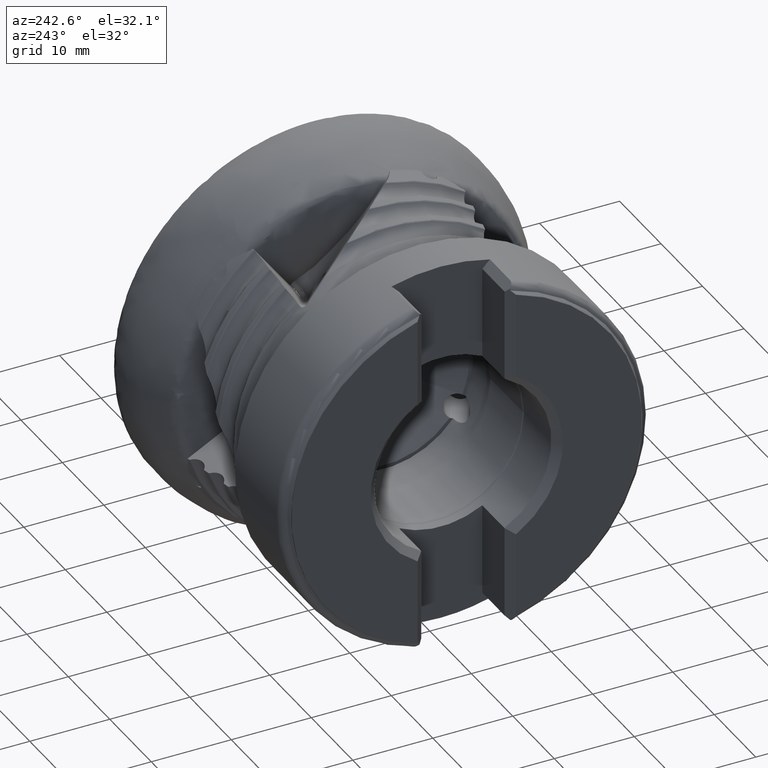
[diagram: clean part render]
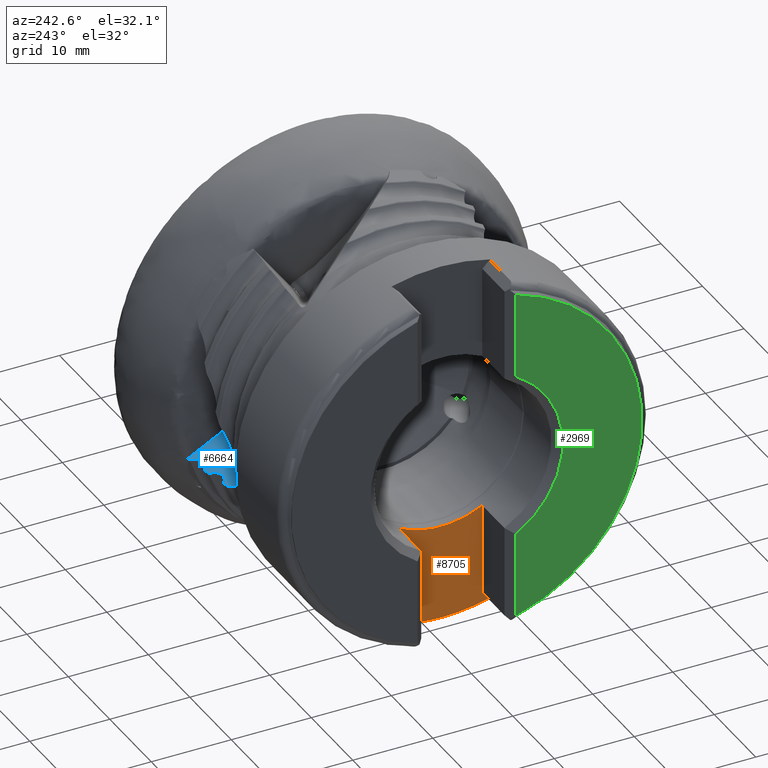
[diagram: same view with three faces highlighted in distinct colors, each labeled with its STEP entity id]
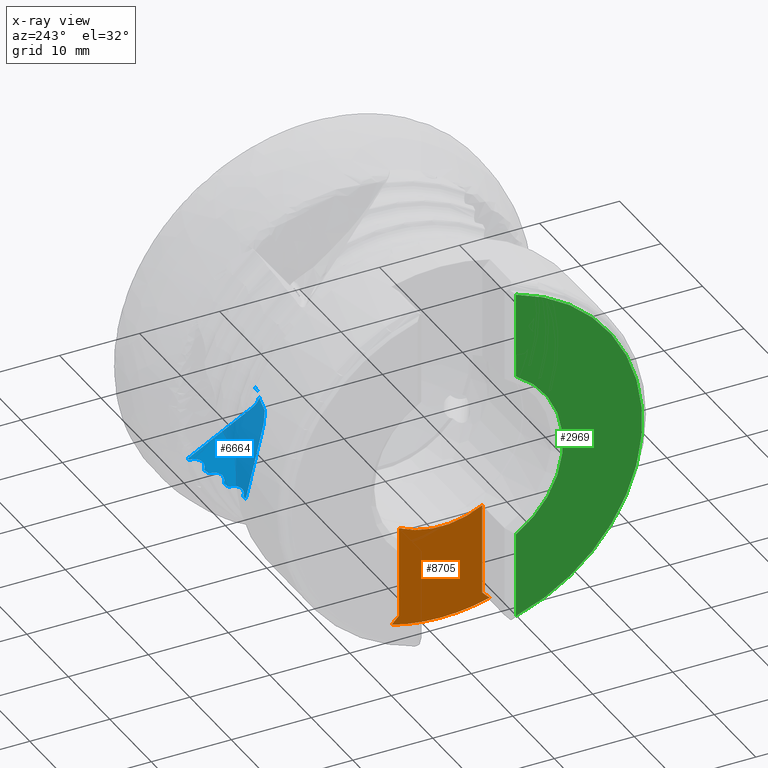
[diagram: x-ray of the same camera — body ghosted, the three highlighted faces saturated]
A machine part, auxiliary view with three faces highlighted in distinct colors.
The next image is the same camera in x-ray (body ghosted, the three faces saturated) — at least one of them is partly hidden behind the body in this view.
Their STEP definitions:

[orange] entity #8705 — the highlighted planar face has unit normal (1, 0, 0).
#744 = DIRECTION ( 'NONE',  ( -0.0000000000000000000, -0.0000000000000000000, 1.000000000000000000 ) ) ;
#1164 = EDGE_CURVE ( 'NONE', #12843, #9608, #3377, .T. ) ;
#1544 = CARTESIAN_POINT ( 'NONE',  ( -32.60525917703945700, 12.09671194195633600, -28.08718699729195800 ) ) ;
#1784 = LINE ( 'NONE', #1544, #9828 ) ;
#1906 = DIRECTION ( 'NONE',  ( -0.0000000000000000000, -0.0000000000000000000, 1.000000000000000000 ) ) ;
#2002 = VECTOR ( 'NONE', #1906, 1000.000000000000000 ) ;
#2168 = VERTEX_POINT ( 'NONE', #10011 ) ;
#2268 = EDGE_CURVE ( 'NONE', #2168, #9608, #11075, .T. ) ;
#2504 = VERTEX_POINT ( 'NONE', #11461 ) ;
#2600 = DIRECTION ( 'NONE',  ( -0.0000000000000000000, 0.7079307432236500200, -0.7062818579000953400 ) ) ;
#2642 = EDGE_CURVE ( 'NONE', #2504, #2168, #9745, .T. ) ;
#2825 = DIRECTION ( 'NONE',  ( -1.000000000000000000, -0.0000000000000000000, -0.0000000000000000000 ) ) ;
#2956 = AXIS2_PLACEMENT_3D ( 'NONE', #4733, #3763, #11094 ) ;
#3377 = CIRCLE ( 'NONE', #4231, 11.07499999999999800 ) ;
#3687 = DIRECTION ( 'NONE',  ( -1.000000000000000000, -0.0000000000000000000, -0.0000000000000000000 ) ) ;
#3763 = DIRECTION ( 'NONE',  ( 1.000000000000000000, 0.0000000000000000000, 0.0000000000000000000 ) ) ;
#4231 = AXIS2_PLACEMENT_3D ( 'NONE', #9140, #2825, #10184 ) ;
#4249 = EDGE_CURVE ( 'NONE', #8901, #12843, #6944, .T. ) ;
#4733 = CARTESIAN_POINT ( 'NONE',  ( -32.60525917703945700, 5.199999999999994000, -35.00000000000000000 ) ) ;
#5498 = VECTOR ( 'NONE', #744, 1000.000000000000000 ) ;
#5975 = CARTESIAN_POINT ( 'NONE',  ( -32.60525917703945700, 6.156428778033626900, -22.16073971466203200 ) ) ;
#5985 = CARTESIAN_POINT ( 'NONE',  ( -32.60525917703945700, -5.200000000000002000, -35.00000000000000000 ) ) ;
#6220 = CARTESIAN_POINT ( 'NONE',  ( -32.60525917703945700, 5.199999999999994000, -9.778324242936518500 ) ) ;
#6881 = PLANE ( 'NONE',  #2956 ) ;
#6944 = LINE ( 'NONE', #12402, #2002 ) ;
#7000 = AXIS2_PLACEMENT_3D ( 'NONE', #9960, #3687, #11026 ) ;
#7048 = FACE_OUTER_BOUND ( 'NONE', #13327, .T. ) ;
#7294 = CARTESIAN_POINT ( 'NONE',  ( -32.60525917703945700, 5.199999999999994000, -21.20653861410987100 ) ) ;
#7552 = CARTESIAN_POINT ( 'NONE',  ( -32.60525917703945700, -5.200000000000002000, -9.778324242936523800 ) ) ;
#7553 = CIRCLE ( 'NONE', #7000, 22.99999999999999300 ) ;
#8045 = EDGE_CURVE ( 'NONE', #8189, #2504, #7553, .T. ) ;
#8189 = VERTEX_POINT ( 'NONE', #5975 ) ;
#8306 = ORIENTED_EDGE ( 'NONE', *, *, #2268, .T. ) ;
#8324 = ORIENTED_EDGE ( 'NONE', *, *, #1164, .F. ) ;
#8633 = DIRECTION ( 'NONE',  ( -0.0000000000000000000, 0.7079307432236525700, 0.7062818579000927900 ) ) ;
#8643 = EDGE_CURVE ( 'Kante49', #8901, #8189, #1784, .T. ) ;
#8705 = ADVANCED_FACE ( 'NONE', ( #7048 ), #6881, .F. ) ;
#8901 = VERTEX_POINT ( 'NONE', #7294 ) ;
#9140 = CARTESIAN_POINT ( 'NONE',  ( -32.60525917703945700, 9.817822619041533500E-018, 0.0000000000000000000 ) ) ;
#9264 = ORIENTED_EDGE ( 'NONE', *, *, #2642, .T. ) ;
#9425 = VECTOR ( 'NONE', #8633, 1000.000000000000000 ) ;
#9608 = VERTEX_POINT ( 'NONE', #7552 ) ;
#9745 = LINE ( 'NONE', #10605, #9425 ) ;
#9828 = VECTOR ( 'NONE', #2600, 1000.000000000000000 ) ;
#9960 = CARTESIAN_POINT ( 'NONE',  ( -32.60525917703945700, 0.0000000000000000000, 0.0000000000000000000 ) ) ;
#10011 = CARTESIAN_POINT ( 'NONE',  ( -32.60525917703945700, -5.200000000000002000, -21.20653861410987400 ) ) ;
#10184 = DIRECTION ( 'NONE',  ( 0.0000000000000000000, 0.0000000000000000000, -1.000000000000000000 ) ) ;
#10605 = CARTESIAN_POINT ( 'NONE',  ( -32.60525917703945700, -6.884586195063938000, -22.88720113517052500 ) ) ;
#10630 = ORIENTED_EDGE ( 'NONE', *, *, #8643, .T. ) ;
#11026 = DIRECTION ( 'NONE',  ( 0.0000000000000000000, 0.0000000000000000000, -1.000000000000000000 ) ) ;
#11073 = ORIENTED_EDGE ( 'NONE', *, *, #8045, .T. ) ;
#11075 = LINE ( 'NONE', #5985, #5498 ) ;
#11094 = DIRECTION ( 'NONE',  ( 0.0000000000000000000, 0.0000000000000000000, -1.000000000000000000 ) ) ;
#11461 = CARTESIAN_POINT ( 'NONE',  ( -32.60525917703945700, -6.156428778033642900, -22.16073971466202900 ) ) ;
#12027 = ORIENTED_EDGE ( 'NONE', *, *, #4249, .F. ) ;
#12402 = CARTESIAN_POINT ( 'NONE',  ( -32.60525917703945700, 5.199999999999994000, -35.00000000000000000 ) ) ;
#12843 = VERTEX_POINT ( 'NONE', #6220 ) ;
#13327 = EDGE_LOOP ( 'NONE', ( #11073, #9264, #8306, #8324, #12027, #10630 ) ) ;

[blue] entity #6664 — the highlighted planar face has unit normal (0.0698, -0.3083, -0.9487).
#25 = CARTESIAN_POINT ( 'NONE',  ( -13.88398338614178800, 20.56022650621939000, -6.773701786591282700 ) ) ;
#171 = CARTESIAN_POINT ( 'NONE',  ( -18.62883296698567300, 19.80382319724400000, -6.876798422369537500 ) ) ;
#206 = CARTESIAN_POINT ( 'NONE',  ( -15.79793937890683300, 20.84722569680470600, -7.007677858700821700 ) ) ;
#225 = EDGE_CURVE ( 'NONE', #1077, #798, #4234, .T. ) ;
#387 = CARTESIAN_POINT ( 'NONE',  ( -16.68034349558404000, 20.59273571953358600, -6.989868169308445900 ) ) ;
#523 = CARTESIAN_POINT ( 'NONE',  ( -19.30840946682451100, 20.17285488709003300, -7.046670221744955500 ) ) ;
#563 = CIRCLE ( 'NONE', #11466, 2.000000000000000000 ) ;
#604 = CARTESIAN_POINT ( 'NONE',  ( -9.435389595420149400, 10.78448282470455800, -3.270285475815230200 ) ) ;
#736 = CARTESIAN_POINT ( 'NONE',  ( -21.35584486701428700, 19.05336861519300500, -6.833465591614260100 ) ) ;
#798 = VERTEX_POINT ( 'NONE', #1428 ) ;
#800 = CIRCLE ( 'NONE', #8583, 9.348387313579401300 ) ;
#868 = VERTEX_POINT ( 'NONE', #1564 ) ;
#869 = B_SPLINE_CURVE_WITH_KNOTS ( 'NONE', 3,
 ( #1759, #12353, #6045, #13401 ),
 .UNSPECIFIED., .F., .F.,
 ( 4, 4 ),
 ( 2.838362184710708900E-007, 0.0001951563836393609600 ),
 .UNSPECIFIED. ) ;
#1024 = CARTESIAN_POINT ( 'NONE',  ( -15.68388848251882600, 20.78384564863424400, -6.978698794785622700 ) ) ;
#1073 = CARTESIAN_POINT ( 'NONE',  ( -13.48964811074724700, 20.84415517652397300, -6.836962144559874100 ) ) ;
#1077 = VERTEX_POINT ( 'NONE', #5881 ) ;
#1150 = FACE_OUTER_BOUND ( 'NONE', #9639, .T. ) ;
#1216 = CARTESIAN_POINT ( 'NONE',  ( -18.27584330257239000, 19.71844814418070900, -6.823104679359843800 ) ) ;
#1229 = CARTESIAN_POINT ( 'NONE',  ( -23.11981319005568400, 19.43727499098623200, -7.087900813309856200 ) ) ;
#1295 = DIRECTION ( 'NONE',  ( 0.1857083024379771500, -0.9304183051527906700, 0.3159655105264072000 ) ) ;
#1427 = EDGE_CURVE ( 'NONE', #10052, #8205, #9971, .T. ) ;
#1428 = CARTESIAN_POINT ( 'NONE',  ( -12.20287921910859000, 18.05469098367928600, -5.836000087333098400 ) ) ;
#1489 = VECTOR ( 'NONE', #7110, 1000.000000000000200 ) ;
#1496 = EDGE_CURVE ( 'NONE', #7774, #12791, #2647, .T. ) ;
#1506 = CARTESIAN_POINT ( 'NONE',  ( -22.75416978094768100, 19.50800489097161600, -7.083998272569576000 ) ) ;
#1564 = CARTESIAN_POINT ( 'NONE',  ( -19.30840946682451100, 20.17285488709003300, -7.046670221744955500 ) ) ;
#1579 = CARTESIAN_POINT ( 'NONE',  ( -19.75500012971992100, 20.08686066428331800, -7.051564762663304000 ) ) ;
#1614 = DIRECTION ( 'NONE',  ( -0.06975647374411163300, 0.3082642445077806200, 0.9487397904213958900 ) ) ;
#1633 = CARTESIAN_POINT ( 'NONE',  ( -23.11981319005568400, 19.43727499098623200, -7.087900813309856200 ) ) ;
#1657 = CARTESIAN_POINT ( 'NONE',  ( -10.00511274668003200, 10.96790884422499300, -3.371773325639725500 ) ) ;
#1759 = CARTESIAN_POINT ( 'NONE',  ( -19.12964879664199800, 20.12200830741515400, -7.017005716524986200 ) ) ;
#1786 = CARTESIAN_POINT ( 'NONE',  ( -20.99689676442808700, 19.13715780868634300, -6.834298547651905600 ) ) ;
#1791 = CARTESIAN_POINT ( 'NONE',  ( -16.68034349558404000, 20.59273571953358600, -6.989868169308445900 ) ) ;
#1827 = CARTESIAN_POINT ( 'NONE',  ( -13.08676981150231600, 21.36615762112270300, -6.976949231696909100 ) ) ;
#1835 = ORIENTED_EDGE ( 'NONE', *, *, #1427, .F. ) ;
#1848 = CARTESIAN_POINT ( 'NONE',  ( -9.031691149297977000, 10.76727190071969000, -3.235011217399156100 ) ) ;
#1881 = B_SPLINE_CURVE_WITH_KNOTS ( 'NONE', 3,
 ( #8608, #2249, #9651, #3382 ),
 .UNSPECIFIED., .F., .F.,
 ( 4, 4 ),
 ( 2.837639008540790500E-007, 0.0001951275491452765000 ),
 .UNSPECIFIED. ) ;
#1967 = ORIENTED_EDGE ( 'NONE', *, *, #12007, .T. ) ;
#1995 = ORIENTED_EDGE ( 'NONE', *, *, #9095, .F. ) ;
#2074 = CARTESIAN_POINT ( 'NONE',  ( -15.50316885198762800, 20.63086447979447200, -6.915704716533711300 ) ) ;
#2117 = CARTESIAN_POINT ( 'NONE',  ( -13.23458318146087400, 21.25266791302541600, -6.950942227548261500 ) ) ;
#2140 = EDGE_CURVE ( 'NONE', #11948, #13560, #563, .T. ) ;
#2189 = B_SPLINE_CURVE_WITH_KNOTS ( 'NONE', 3,
 ( #10858, #7688, #6690, #387 ),
 .UNSPECIFIED., .F., .F.,
 ( 4, 4 ),
 ( 2.007715285908968600E-007, 0.0001951053600182067000 ),
 .UNSPECIFIED. ) ;
#2213 = VERTEX_POINT ( 'NONE', #5944 ) ;
#2249 = CARTESIAN_POINT ( 'NONE',  ( -22.62121353661415700, 19.50121181419610700, -7.072015406917863300 ) ) ;
#2250 = VECTOR ( 'NONE', #1295, 1000.000000000000200 ) ;
#2255 = CARTESIAN_POINT ( 'NONE',  ( -17.91053348653045400, 19.71717650785810200, -6.795831948878096700 ) ) ;
#2359 = ORIENTED_EDGE ( 'NONE', *, *, #8986, .F. ) ;
#2451 = CARTESIAN_POINT ( 'NONE',  ( -8.726922270936542600, 10.79894996268882100, -3.222895789610522600 ) ) ;
#2582 = VECTOR ( 'NONE', #5539, 1000.000000000000100 ) ;
#2647 = B_SPLINE_CURVE_WITH_KNOTS ( 'NONE', 3,
 ( #10765, #9704, #6514, #4491 ),
 .UNSPECIFIED., .F., .F.,
 ( 4, 4 ),
 ( 2.036546866895653500E-007, 0.0006823349459760744300 ),
 .UNSPECIFIED. ) ;
#2665 = CARTESIAN_POINT ( 'NONE',  ( -9.031691149297977000, 10.76727190071969000, -3.235011217399156100 ) ) ;
#2687 = CARTESIAN_POINT ( 'NONE',  ( -13.23458318146087400, 21.25266791302541600, -6.950942227548261500 ) ) ;
#2706 = CARTESIAN_POINT ( 'NONE',  ( -10.48856363168167500, 11.30649234385414400, -3.517331693778609700 ) ) ;
#2835 = CARTESIAN_POINT ( 'NONE',  ( -20.66825771802942000, 19.30038286982001200, -6.863170267190033000 ) ) ;
#2935 = CIRCLE ( 'NONE', #12122, 2.537315167658678900 ) ;
#2961 = EDGE_CURVE ( 'NONE', #3963, #8700, #9374, .T. ) ;
#3051 = CARTESIAN_POINT ( 'NONE',  ( -12.31066915237034100, 18.78536435464905100, -6.081335555164602400 ) ) ;
#3141 = CARTESIAN_POINT ( 'NONE',  ( -15.18330566824164800, 20.46541940586322300, -6.838430284448311800 ) ) ;
#3299 = CARTESIAN_POINT ( 'NONE',  ( -18.94884979915381300, 19.96907934821331300, -6.954022766725421100 ) ) ;
#3342 = CARTESIAN_POINT ( 'NONE',  ( -17.55154085861514800, 19.80055028760419900, -6.796526655064493400 ) ) ;
#3354 = EDGE_CURVE ( 'NONE', #868, #5178, #7354, .T. ) ;
#3382 = CARTESIAN_POINT ( 'NONE',  ( -22.75416978094768100, 19.50800489097161600, -7.083998272569576000 ) ) ;
#3785 = CARTESIAN_POINT ( 'NONE',  ( -10.84138396016285500, 11.76972942168082500, -3.693787800600019100 ) ) ;
#3851 = CARTESIAN_POINT ( 'NONE',  ( -8.376946064497834900, 10.70067600713713900, -3.165232504829199800 ) ) ;
#3870 = CARTESIAN_POINT ( 'NONE',  ( -22.48946869769019200, 19.37486908727574100, -7.021277574325115900 ) ) ;
#3918 = CARTESIAN_POINT ( 'NONE',  ( -20.22600781269433800, 19.71302835452563700, -6.964730311003194200 ) ) ;
#3963 = VERTEX_POINT ( 'NONE', #5595 ) ;
#4033 = CARTESIAN_POINT ( 'NONE',  ( -13.08676981150231600, 21.36615762112270300, -6.976949231696909100 ) ) ;
#4061 = VERTEX_POINT ( 'NONE', #12120 ) ;
#4068 = VERTEX_POINT ( 'NONE', #11046 ) ;
#4073 = CARTESIAN_POINT ( 'NONE',  ( -11.01071103530450100, 12.27243621857951600, -3.869576981479751600 ) ) ;
#4116 = ORIENTED_EDGE ( 'NONE', *, *, #3354, .T. ) ;
#4130 = PLANE ( 'NONE',  #10861 ) ;
#4191 = ORIENTED_EDGE ( 'NONE', *, *, #10682, .T. ) ;
#4209 = CARTESIAN_POINT ( 'NONE',  ( -14.83045972226174000, 20.37973949391056300, -6.784648053736371600 ) ) ;
#4228 = ORIENTED_EDGE ( 'NONE', *, *, #10019, .T. ) ;
#4234 = B_SPLINE_CURVE_WITH_KNOTS ( 'NONE', 3,
 ( #4986, #13238, #8035, #9328 ),
 .UNSPECIFIED., .F., .F.,
 ( 4, 4 ),
 ( 0.01439730666888808900, 0.01672146030092118800 ),
 .UNSPECIFIED. ) ;
#4281 = EDGE_CURVE ( 'NONE', #12427, #8700, #6178, .T. ) ;
#4332 = B_SPLINE_CURVE_WITH_KNOTS ( 'NONE', 3,
 ( #12809, #5451, #206, #7562 ),
 .UNSPECIFIED., .F., .F.,
 ( 4, 4 ),
 ( 2.839251412793830000E-007, 0.0001951882025762778000 ),
 .UNSPECIFIED. ) ;
#4346 = DIRECTION ( 'NONE',  ( -0.06975647374411163300, 0.3082642445077806200, 0.9487397904213958900 ) ) ;
#4400 = CARTESIAN_POINT ( 'NONE',  ( -17.22278995155486200, 19.96341551185515700, -6.825273231911971500 ) ) ;
#4491 = CARTESIAN_POINT ( 'NONE',  ( -16.53253012562548100, 20.70634341262929100, -7.015913509106939100 ) ) ;
#4635 = LINE ( 'NONE', #7202, #1489 ) ;
#4703 = CARTESIAN_POINT ( 'NONE',  ( -8.726922270936542600, 10.79894996268882100, -3.222895789610522600 ) ) ;
#4756 = ORIENTED_EDGE ( 'NONE', *, *, #9792, .T. ) ;
#4933 = CARTESIAN_POINT ( 'NONE',  ( -22.18729898466982300, 19.18647400987459100, -6.937847153617802600 ) ) ;
#4946 = CIRCLE ( 'NONE', #11456, 2.000000000000000000 ) ;
#4975 = CARTESIAN_POINT ( 'NONE',  ( -13.15146320938126600, 21.35379364065137900, -6.977688538953270100 ) ) ;
#4986 = CARTESIAN_POINT ( 'NONE',  ( -11.77925509345429900, 15.93228915329060100, -5.115242795522508600 ) ) ;
#5002 = CARTESIAN_POINT ( 'NONE',  ( -12.94360839852471300, 21.39351653760651900, -6.975312682201690400 ) ) ;
#5172 = EDGE_CURVE ( 'NONE', #9852, #13314, #13330, .T. ) ;
#5178 = VERTEX_POINT ( 'NONE', #6021 ) ;
#5188 = B_SPLINE_CURVE_WITH_KNOTS ( 'NONE', 3,
 ( #9913, #7813, #10982, #4703 ),
 .UNSPECIFIED., .F., .F.,
 ( 4, 4 ),
 ( 0.007620288912296331600, 0.007988543552144579000 ),
 .UNSPECIFIED. ) ;
#5269 = CARTESIAN_POINT ( 'NONE',  ( -14.46517845845067600, 20.37809317903300900, -6.757255682126595000 ) ) ;
#5315 = DIRECTION ( 'NONE',  ( -0.06975647374411163300, 0.3082642445077806200, 0.9487397904213958900 ) ) ;
#5436 = DIRECTION ( 'NONE',  ( -0.06975647374411163300, 0.3082642445077806200, 0.9487397904213958900 ) ) ;
#5451 = CARTESIAN_POINT ( 'NONE',  ( -15.72968109466776300, 20.82780996182510000, -6.996350586253846000 ) ) ;
#5455 = CARTESIAN_POINT ( 'NONE',  ( -16.78028411710051400, 20.37572125199141800, -6.926704068731674500 ) ) ;
#5461 = ORIENTED_EDGE ( 'NONE', *, *, #12993, .F. ) ;
#5539 = DIRECTION ( 'NONE',  ( 0.7672847685016596100, -0.5912005163151664600, 0.2485076126279338000 ) ) ;
#5595 = CARTESIAN_POINT ( 'NONE',  ( -13.08676981150231600, 21.36615762112270300, -6.976949231696909100 ) ) ;
#5626 = ORIENTED_EDGE ( 'NONE', *, *, #8925, .T. ) ;
#5671 = ORIENTED_EDGE ( 'NONE', *, *, #12208, .T. ) ;
#5719 = VERTEX_POINT ( 'NONE', #3851 ) ;
#5763 = CARTESIAN_POINT ( 'NONE',  ( -9.235302833366006300, 10.76104596021029500, -3.247958917464276700 ) ) ;
#5793 = CARTESIAN_POINT ( 'NONE',  ( -20.12610380970720700, 19.93008961165067200, -7.027912306829077400 ) ) ;
#5827 = EDGE_CURVE ( 'NONE', #1077, #11676, #4635, .T. ) ;
#5881 = CARTESIAN_POINT ( 'NONE',  ( -11.77925509345429900, 15.93228915329060100, -5.115242795522508600 ) ) ;
#5944 = CARTESIAN_POINT ( 'NONE',  ( -10.91408411183054700, 11.94948739205542200, -3.757540013549696600 ) ) ;
#5973 = CARTESIAN_POINT ( 'NONE',  ( -21.84279736860460700, 19.07367911662853300, -6.875868251625540500 ) ) ;
#5977 = ORIENTED_EDGE ( 'NONE', *, *, #5827, .F. ) ;
#6021 = CARTESIAN_POINT ( 'NONE',  ( -19.97829043974865500, 20.04383697540408700, -7.054003028375245100 ) ) ;
#6045 = CARTESIAN_POINT ( 'NONE',  ( -19.24372028169582500, 20.18530862186970900, -7.045960387175351300 ) ) ;
#6178 = B_SPLINE_CURVE_WITH_KNOTS ( 'NONE', 3,
 ( #1024, #7332, #2074, #9432, #3141, #10493, #4209, #11570, #5269, #12633, #6322, #25, #7379, #1073, #8421, #2117 ),
 .UNSPECIFIED., .F., .F.,
 ( 4, 2, 2, 2, 2, 2, 2, 4 ),
 ( 2.837116369305509700E-007, 0.0003656890898203483600, 0.0007310944680037662200, 0.001096499846187184000, 0.001461905224370601800, 0.001827310602554019700, 0.002192715980737437500, 0.002923526737104262700 ),
 .UNSPECIFIED. ) ;
#6286 = DIRECTION ( 'NONE',  ( 0.9975640502598252000, 0.02155593585460013200, 0.06634234890810925000 ) ) ;
#6322 = CARTESIAN_POINT ( 'NONE',  ( -14.10613452609733900, 20.46109396857119800, -6.757825424268546900 ) ) ;
#6360 = VERTEX_POINT ( 'NONE', #1229 ) ;
#6465 = ORIENTED_EDGE ( 'NONE', *, *, #9253, .T. ) ;
#6468 = CARTESIAN_POINT ( 'NONE',  ( -18.74172798545038500, 19.85106490233764700, -6.900448834366446100 ) ) ;
#6514 = CARTESIAN_POINT ( 'NONE',  ( -16.30923952640062100, 20.74918516286131600, -7.013416106681751700 ) ) ;
#6664 = ADVANCED_FACE ( 'NONE', ( #1150 ), #4130, .F. ) ;
#6690 = CARTESIAN_POINT ( 'NONE',  ( -16.65370095963538700, 20.65058822900510200, -7.006706685967097700 ) ) ;
#6800 = ORIENTED_EDGE ( 'NONE', *, *, #6893, .T. ) ;
#6825 = CARTESIAN_POINT ( 'NONE',  ( -19.53170645175900000, 20.12986653578024100, -7.049120460104349600 ) ) ;
#6852 = CARTESIAN_POINT ( 'NONE',  ( -22.57540911076516800, 19.45728556923615900, -7.054375115960627200 ) ) ;
#6883 = ORIENTED_EDGE ( 'NONE', *, *, #1496, .T. ) ;
#6893 = EDGE_CURVE ( 'NONE', #13150, #6360, #10531, .T. ) ;
#7029 = CARTESIAN_POINT ( 'NONE',  ( -20.12610380970720700, 19.93008961165067200, -7.027912306829077400 ) ) ;
#7030 = CARTESIAN_POINT ( 'NONE',  ( -21.47720744468976800, 19.04428000513072300, -6.839435755410330700 ) ) ;
#7110 = DIRECTION ( 'NONE',  ( 0.1857083024379771500, -0.9304183051527906700, 0.3159655105264072000 ) ) ;
#7202 = CARTESIAN_POINT ( 'NONE',  ( -14.57574233783731400, 29.94298704961285300, -9.873207346647618000 ) ) ;
#7332 = CARTESIAN_POINT ( 'NONE',  ( -15.59801831418687500, 20.70140390099995600, -6.945598208607941100 ) ) ;
#7354 = B_SPLINE_CURVE_WITH_KNOTS ( 'NONE', 3,
 ( #523, #6825, #1579, #8941 ),
 .UNSPECIFIED., .F., .F.,
 ( 4, 4 ),
 ( 2.036843625393882800E-007, 0.0006824352502363809900 ),
 .UNSPECIFIED. ) ;
#7379 = CARTESIAN_POINT ( 'NONE',  ( -13.77727709152310700, 20.62365040853376300, -6.786463838540632800 ) ) ;
#7433 = CARTESIAN_POINT ( 'NONE',  ( -19.04374302206346300, 20.03958336404852900, -6.983907972421286000 ) ) ;
#7442 = B_SPLINE_CURVE_WITH_KNOTS ( 'NONE', 3,
 ( #2665, #5763, #604, #7951, #1657, #9018, #2706, #10050, #3785, #11115 ),
 .UNSPECIFIED., .F., .F.,
 ( 4, 2, 2, 2, 4 ),
 ( 0.0000000000000000000, 0.0006057838252795055800, 0.001211567650559011200, 0.001817351475838516600, 0.002423135301118022300 ),
 .UNSPECIFIED. ) ;
#7517 = CARTESIAN_POINT ( 'NONE',  ( -18.39737915061082100, 19.73800270797263000, -6.838394314276718500 ) ) ;
#7562 = CARTESIAN_POINT ( 'NONE',  ( -15.86264915270133700, 20.83481986785163200, -7.008404772606970000 ) ) ;
#7688 = CARTESIAN_POINT ( 'NONE',  ( -16.59723726091808200, 20.69392834930796000, -7.016637228588045600 ) ) ;
#7709 = LINE ( 'NONE', #7736, #2582 ) ;
#7736 = CARTESIAN_POINT ( 'NONE',  ( -14.27900977119123700, 12.62534836291846200, -4.224548064078153000 ) ) ;
#7774 = VERTEX_POINT ( 'NONE', #10394 ) ;
#7813 = CARTESIAN_POINT ( 'NONE',  ( -8.495908560764467800, 10.72373476829764600, -3.181471515769115600 ) ) ;
#7883 = CARTESIAN_POINT ( 'NONE',  ( -22.87605200273960500, 19.48443397654217800, -7.085301057472067400 ) ) ;
#7906 = CARTESIAN_POINT ( 'NONE',  ( -9.050459560848850100, 12.66889521012671500, -3.854266040430620200 ) ) ;
#7919 = CARTESIAN_POINT ( 'NONE',  ( -22.99793314285658900, 19.46085736132583600, -7.086601910546027000 ) ) ;
#7951 = CARTESIAN_POINT ( 'NONE',  ( -9.824103527792013700, 10.88904167130411000, -3.332839052328264300 ) ) ;
#8035 = CARTESIAN_POINT ( 'NONE',  ( -12.14789231321671000, 17.33454159317512800, -5.597966431810637500 ) ) ;
#8066 = CARTESIAN_POINT ( 'NONE',  ( -21.11439595851865600, 19.09991905933800600, -6.830838119914090200 ) ) ;
#8193 = CARTESIAN_POINT ( 'NONE',  ( -12.87202725915487500, 21.40719368356029800, -6.974493624318372800 ) ) ;
#8205 = VERTEX_POINT ( 'NONE', #1791 ) ;
#8342 = CARTESIAN_POINT ( 'NONE',  ( -8.319399159591663200, 19.59259490488702600, -6.050160932741440500 ) ) ;
#8421 = CARTESIAN_POINT ( 'NONE',  ( -13.33455140021402800, 21.03568550348431600, -6.887790572345358500 ) ) ;
#8459 = ORIENTED_EDGE ( 'NONE', *, *, #225, .T. ) ;
#8567 = CARTESIAN_POINT ( 'NONE',  ( -18.03188248097279700, 19.70822509016224100, -6.801845690463518500 ) ) ;
#8583 = AXIS2_PLACEMENT_3D ( 'NONE', #11624, #5315, #12684 ) ;
#8608 = CARTESIAN_POINT ( 'NONE',  ( -22.57540911076516800, 19.45728556923615900, -7.054375115960627200 ) ) ;
#8653 = CARTESIAN_POINT ( 'NONE',  ( -14.57574233783731400, 29.94298704961285300, -9.873207346647618000 ) ) ;
#8700 = VERTEX_POINT ( 'NONE', #2687 ) ;
#8919 = CARTESIAN_POINT ( 'NONE',  ( -20.04301539160319100, 20.03136573923197300, -7.054709806160603100 ) ) ;
#8925 = EDGE_CURVE ( 'NONE', #4061, #5719, #800, .T. ) ;
#8941 = CARTESIAN_POINT ( 'NONE',  ( -19.97829043974865500, 20.04383697540408700, -7.054003028375245100 ) ) ;
#8978 = DIRECTION ( 'NONE',  ( 0.9975640502598252000, 0.02155593585459990300, 0.06634234890810926400 ) ) ;
#8986 = EDGE_CURVE ( 'NONE', #11676, #4068, #2935, .T. ) ;
#9011 = ORIENTED_EDGE ( 'NONE', *, *, #12457, .T. ) ;
#9014 = EDGE_CURVE ( 'NONE', #12427, #7774, #4332, .T. ) ;
#9018 = CARTESIAN_POINT ( 'NONE',  ( -10.34061260399835500, 11.17846628910960000, -3.464855348289788600 ) ) ;
#9027 = EDGE_CURVE ( 'NONE', #9852, #13150, #1881, .T. ) ;
#9095 = EDGE_CURVE ( 'NONE', #9250, #798, #13468, .T. ) ;
#9101 = ORIENTED_EDGE ( 'NONE', *, *, #5172, .F. ) ;
#9146 = CARTESIAN_POINT ( 'NONE',  ( -20.77486699893515600, 19.23675571793311800, -6.850335042479148500 ) ) ;
#9159 = ORIENTED_EDGE ( 'NONE', *, *, #9290, .T. ) ;
#9187 = CARTESIAN_POINT ( 'NONE',  ( -13.23458318146087400, 21.25266791302541600, -6.950942227548261500 ) ) ;
#9250 = VERTEX_POINT ( 'NONE', #12301 ) ;
#9253 = EDGE_CURVE ( 'NONE', #10052, #868, #869, .T. ) ;
#9290 = EDGE_CURVE ( 'NONE', #9250, #3963, #9618, .T. ) ;
#9328 = CARTESIAN_POINT ( 'NONE',  ( -12.20287921910859000, 18.05469098367928600, -5.836000087333098400 ) ) ;
#9339 = VERTEX_POINT ( 'NONE', #4073 ) ;
#9342 = DIRECTION ( 'NONE',  ( -0.1857083024379773400, 0.9304183051527906700, -0.3159655105264073100 ) ) ;
#9374 = B_SPLINE_CURVE_WITH_KNOTS ( 'NONE', 3,
 ( #1827, #4975, #13368, #9187 ),
 .UNSPECIFIED., .F., .F.,
 ( 4, 4 ),
 ( 2.007458061446455700E-007, 0.0001950389156414757500 ),
 .UNSPECIFIED. ) ;
#9401 = ORIENTED_EDGE ( 'NONE', *, *, #9014, .T. ) ;
#9432 = CARTESIAN_POINT ( 'NONE',  ( -15.29615160525455100, 20.51274159902952100, -6.862103239871904800 ) ) ;
#9479 = LINE ( 'NONE', #3051, #12299 ) ;
#9615 = CARTESIAN_POINT ( 'NONE',  ( -17.66910873260673800, 19.76343691213626400, -6.793112013487086800 ) ) ;
#9618 = B_SPLINE_CURVE_WITH_KNOTS ( 'NONE', 3,
 ( #8193, #5002, #10306, #4033 ),
 .UNSPECIFIED., .F., .F.,
 ( 4, 4 ),
 ( 0.001937300495580302100, 0.002155942555447813300 ),
 .UNSPECIFIED. ) ;
#9639 = EDGE_LOOP ( 'NONE', ( #5626, #4756, #12486, #4191, #5461, #1967, #2359, #5977, #8459, #1995, #9159, #12942, #10777, #9401, #6883, #9011, #1835, #6465, #4116, #5671, #9101, #10595, #6800, #4228 ) ) ;
#9651 = CARTESIAN_POINT ( 'NONE',  ( -22.68950111601219900, 19.52051122332451900, -7.083307036742925600 ) ) ;
#9704 = CARTESIAN_POINT ( 'NONE',  ( -16.08594585086039100, 20.79201055992838900, -7.010913164603854500 ) ) ;
#9792 = EDGE_CURVE ( 'NONE', #5719, #13560, #5188, .T. ) ;
#9852 = VERTEX_POINT ( 'NONE', #6852 ) ;
#9913 = CARTESIAN_POINT ( 'NONE',  ( -8.376946064497834900, 10.70067600713713900, -3.165232504829199800 ) ) ;
#9971 = B_SPLINE_CURVE_WITH_KNOTS ( 'NONE', 3,
 ( #12771, #7433, #3299, #6468, #171, #7517, #1216, #8567, #2255, #9615, #3342, #10677, #4400, #11759, #5455, #12815 ),
 .UNSPECIFIED., .F., .F.,
 ( 4, 2, 2, 2, 2, 2, 2, 4 ),
 ( 2.836226876708936600E-007, 0.0003657258944797937400, 0.0007311681662719165100, 0.001096610438064039500, 0.001462052709856162300, 0.001827494981648284800, 0.002192937253440407800, 0.002923821797024646900 ),
 .UNSPECIFIED. ) ;
#10019 = EDGE_CURVE ( 'NONE', #6360, #4061, #7709, .T. ) ;
#10050 = CARTESIAN_POINT ( 'NONE',  ( -10.73974181237515600, 11.60274739783916900, -3.632058772440080600 ) ) ;
#10052 = VERTEX_POINT ( 'NONE', #13025 ) ;
#10140 = CARTESIAN_POINT ( 'NONE',  ( -22.39453123029979100, 19.30439249646823200, -6.991398026467718900 ) ) ;
#10192 = CARTESIAN_POINT ( 'NONE',  ( -20.38095027636904900, 19.52133190969490100, -6.913836567187562600 ) ) ;
#10306 = CARTESIAN_POINT ( 'NONE',  ( -13.01518924983313000, 21.37983785273244000, -6.976131218879658900 ) ) ;
#10394 = CARTESIAN_POINT ( 'NONE',  ( -15.86264915270133700, 20.83481986785163200, -7.008404772606970000 ) ) ;
#10493 = CARTESIAN_POINT ( 'NONE',  ( -14.95194072205704400, 20.39940770367352800, -6.799970581728553400 ) ) ;
#10531 = B_SPLINE_CURVE_WITH_KNOTS ( 'NONE', 3,
 ( #13174, #7883, #7919, #1633 ),
 .UNSPECIFIED., .F., .F.,
 ( 4, 4 ),
 ( 2.037168967402484200E-007, 0.0003726457273246709800 ),
 .UNSPECIFIED. ) ;
#10544 = B_SPLINE_CURVE_WITH_KNOTS ( 'NONE', 3,
 ( #12051, #8919, #12097, #5793 ),
 .UNSPECIFIED., .F., .F.,
 ( 4, 4 ),
 ( 2.007994606244926400E-007, 0.0001951862642483164000 ),
 .UNSPECIFIED. ) ;
#10595 = ORIENTED_EDGE ( 'NONE', *, *, #9027, .T. ) ;
#10627 = CARTESIAN_POINT ( 'NONE',  ( -8.653250843453923500, 13.23321911058990700, -4.008421060431540000 ) ) ;
#10677 = CARTESIAN_POINT ( 'NONE',  ( -17.32945011939999000, 19.89989853803120600, -6.812477547706460100 ) ) ;
#10682 = EDGE_CURVE ( 'NONE', #11948, #2213, #7442, .T. ) ;
#10765 = CARTESIAN_POINT ( 'NONE',  ( -15.86264915270133700, 20.83481986785163200, -7.008404772606970000 ) ) ;
#10777 = ORIENTED_EDGE ( 'NONE', *, *, #4281, .F. ) ;
#10858 = CARTESIAN_POINT ( 'NONE',  ( -16.53253012562548100, 20.70634341262929100, -7.015913509106939100 ) ) ;
#10861 = AXIS2_PLACEMENT_3D ( 'NONE', #8342, #12598, #6286 ) ;
#10982 = CARTESIAN_POINT ( 'NONE',  ( -8.612783309092455000, 10.75601184591520400, -3.200552236787196100 ) ) ;
#11046 = CARTESIAN_POINT ( 'NONE',  ( -11.02305078283556000, 12.33425966337512500, -3.890571921270985700 ) ) ;
#11115 = CARTESIAN_POINT ( 'NONE',  ( -10.91408411183054700, 11.94948739205542200, -3.757540013549696600 ) ) ;
#11201 = CARTESIAN_POINT ( 'NONE',  ( -22.57540911076516800, 19.45728556923615900, -7.054375115960627200 ) ) ;
#11254 = CARTESIAN_POINT ( 'NONE',  ( -20.12610380970720700, 19.93008961165067200, -7.027912306829077400 ) ) ;
#11456 = AXIS2_PLACEMENT_3D ( 'NONE', #11733, #5436, #12793 ) ;
#11466 = AXIS2_PLACEMENT_3D ( 'NONE', #7906, #1614, #8978 ) ;
#11570 = CARTESIAN_POINT ( 'NONE',  ( -14.58651918576454400, 20.36926869115034900, -6.763310057864431200 ) ) ;
#11624 = CARTESIAN_POINT ( 'NONE',  ( -8.319399159591663200, 19.59259490488702600, -6.050160932741439600 ) ) ;
#11676 = VERTEX_POINT ( 'NONE', #12814 ) ;
#11709 = DIRECTION ( 'NONE',  ( 0.0000000000000000000, -0.9510565162951566400, 0.3090169943749378500 ) ) ;
#11733 = CARTESIAN_POINT ( 'NONE',  ( -9.050459560848850100, 12.66889521012671500, -3.854266040430620200 ) ) ;
#11759 = CARTESIAN_POINT ( 'NONE',  ( -16.93531194891911100, 20.18412018883282500, -6.875847593027017100 ) ) ;
#11948 = VERTEX_POINT ( 'NONE', #1848 ) ;
#12007 = EDGE_CURVE ( 'NONE', #9339, #4068, #9479, .T. ) ;
#12051 = CARTESIAN_POINT ( 'NONE',  ( -19.97829043974865500, 20.04383697540408700, -7.054003028375245100 ) ) ;
#12097 = CARTESIAN_POINT ( 'NONE',  ( -20.09946332320487600, 19.98797135129791900, -7.044760471633912500 ) ) ;
#12120 = CARTESIAN_POINT ( 'NONE',  ( -14.27900977119124300, 12.62534836291846000, -4.224548064078152100 ) ) ;
#12122 = AXIS2_PLACEMENT_3D ( 'NONE', #10627, #4346, #11709 ) ;
#12208 = EDGE_CURVE ( 'NONE', #5178, #13314, #10544, .T. ) ;
#12279 = CARTESIAN_POINT ( 'NONE',  ( -22.07435081896490900, 19.13930910467380600, -6.914217787746595800 ) ) ;
#12299 = VECTOR ( 'NONE', #9342, 1000.000000000000000 ) ;
#12301 = CARTESIAN_POINT ( 'NONE',  ( -12.87202725915487500, 21.40719368356029800, -6.974493624318372800 ) ) ;
#12353 = CARTESIAN_POINT ( 'NONE',  ( -19.17544830164621300, 20.16595205420880900, -7.034651332365628600 ) ) ;
#12427 = VERTEX_POINT ( 'NONE', #12938 ) ;
#12438 = CARTESIAN_POINT ( 'NONE',  ( -16.53253012562548100, 20.70634341262929100, -7.015913509106939100 ) ) ;
#12457 = EDGE_CURVE ( 'NONE', #12791, #8205, #2189, .T. ) ;
#12486 = ORIENTED_EDGE ( 'NONE', *, *, #2140, .F. ) ;
#12598 = DIRECTION ( 'NONE',  ( 0.06975647374411167400, -0.3082642445077806200, -0.9487397904213960000 ) ) ;
#12633 = CARTESIAN_POINT ( 'NONE',  ( -14.22376637380816400, 20.42409170355816500, -6.754451588359772900 ) ) ;
#12684 = DIRECTION ( 'NONE',  ( -1.855639285994237700E-015, 0.9510565162951566400, -0.3090169943749378500 ) ) ;
#12771 = CARTESIAN_POINT ( 'NONE',  ( -19.12964879664199800, 20.12200830741515400, -7.017005716524986200 ) ) ;
#12791 = VERTEX_POINT ( 'NONE', #12438 ) ;
#12793 = DIRECTION ( 'NONE',  ( 0.9975640502598252000, 0.02155593585459990300, 0.06634234890810926400 ) ) ;
#12809 = CARTESIAN_POINT ( 'NONE',  ( -15.68388848251882600, 20.78384564863424400, -6.978698794785622700 ) ) ;
#12814 = CARTESIAN_POINT ( 'NONE',  ( -11.14013874273473600, 12.73024840428622400, -4.027845401909086600 ) ) ;
#12815 = CARTESIAN_POINT ( 'NONE',  ( -16.68034349558404000, 20.59273571953358600, -6.989868169308445900 ) ) ;
#12938 = CARTESIAN_POINT ( 'NONE',  ( -15.68388848251882600, 20.78384564863424400, -6.978698794785622700 ) ) ;
#12942 = ORIENTED_EDGE ( 'NONE', *, *, #2961, .T. ) ;
#12993 = EDGE_CURVE ( 'NONE', #9339, #2213, #4946, .T. ) ;
#13025 = CARTESIAN_POINT ( 'NONE',  ( -19.12964879664199800, 20.12200830741515400, -7.017005716524986200 ) ) ;
#13150 = VERTEX_POINT ( 'NONE', #1506 ) ;
#13174 = CARTESIAN_POINT ( 'NONE',  ( -22.75416978094768100, 19.50800489097161600, -7.083998272569576000 ) ) ;
#13238 = CARTESIAN_POINT ( 'NONE',  ( -12.00810080913512800, 16.62686596035097600, -5.357750453737251600 ) ) ;
#13314 = VERTEX_POINT ( 'NONE', #7029 ) ;
#13329 = CARTESIAN_POINT ( 'NONE',  ( -21.72119828749743300, 19.05424125492484300, -6.860611886278974200 ) ) ;
#13330 = B_SPLINE_CURVE_WITH_KNOTS ( 'NONE', 3,
 ( #11201, #3870, #10140, #4933, #12279, #5973, #13329, #7030, #736, #8066, #1786, #9146, #2835, #10192, #3918, #11254 ),
 .UNSPECIFIED., .F., .F.,
 ( 4, 2, 2, 2, 2, 2, 2, 4 ),
 ( 2.835503140637734800E-007, 0.0003657798762479889900, 0.0007312762021819142200, 0.001096772528115839700, 0.001462268854049764800, 0.001827765179983690100, 0.002193261505917615300, 0.002924254157785465100 ),
 .UNSPECIFIED. ) ;
#13368 = CARTESIAN_POINT ( 'NONE',  ( -13.20794022854182800, 21.31049681298751300, -6.967773042354369100 ) ) ;
#13401 = CARTESIAN_POINT ( 'NONE',  ( -19.30840946682451100, 20.17285488709003300, -7.046670221744955500 ) ) ;
#13468 = LINE ( 'NONE', #8653, #2250 ) ;
#13560 = VERTEX_POINT ( 'NONE', #2451 ) ;

[green] entity #2969 — the highlighted planar face has unit normal (-1, 0, 0).
#10 = CARTESIAN_POINT ( 'NONE',  ( -38.90525917703945400, 0.0000000000000000000, 0.0000000000000000000 ) ) ;
#579 = CARTESIAN_POINT ( 'NONE',  ( -38.90525917703945400, -6.150000000000021700, 10.33335013439493900 ) ) ;
#1059 = DIRECTION ( 'NONE',  ( 0.0000000000000000000, 0.0000000000000000000, 1.000000000000000000 ) ) ;
#1583 = AXIS2_PLACEMENT_3D ( 'NONE', #3379, #10705, #4442 ) ;
#1895 = EDGE_CURVE ( 'NONE', #6964, #2885, #7143, .T. ) ;
#2282 = EDGE_CURVE ( 'NONE', #2885, #3068, #10738, .T. ) ;
#2517 = VECTOR ( 'NONE', #12177, 1000.000000000000000 ) ;
#2693 = CARTESIAN_POINT ( 'NONE',  ( -38.90525917703945400, -6.150000000000021700, -35.00000000000000000 ) ) ;
#2780 = CIRCLE ( 'NONE', #6520, 21.92228756555323000 ) ;
#2829 = ORIENTED_EDGE ( 'NONE', *, *, #2282, .T. ) ;
#2875 = CARTESIAN_POINT ( 'NONE',  ( -38.90525917703945400, 0.0000000000000000000, 0.0000000000000000000 ) ) ;
#2885 = VERTEX_POINT ( 'NONE', #6888 ) ;
#2907 = EDGE_CURVE ( 'NONE', #6521, #6964, #8769, .T. ) ;
#2969 = ADVANCED_FACE ( 'NONE', ( #4675 ), #10230, .T. ) ;
#3068 = VERTEX_POINT ( 'NONE', #5198 ) ;
#3379 = CARTESIAN_POINT ( 'NONE',  ( -38.90525917703945400, 3.572267326906950300E-018, 1.514693082531720100E-017 ) ) ;
#4442 = DIRECTION ( 'NONE',  ( 0.0000000000000000000, 0.0000000000000000000, 1.000000000000000000 ) ) ;
#4675 = FACE_OUTER_BOUND ( 'NONE', #4921, .T. ) ;
#4921 = EDGE_LOOP ( 'NONE', ( #2829, #9594, #12521, #6165 ) ) ;
#5022 = DIRECTION ( 'NONE',  ( 0.0000000000000000000, 0.0000000000000000000, 1.000000000000000000 ) ) ;
#5198 = CARTESIAN_POINT ( 'NONE',  ( -38.90525917703945400, -6.150000000000022600, -21.04196264864115700 ) ) ;
#6165 = ORIENTED_EDGE ( 'NONE', *, *, #1895, .T. ) ;
#6520 = AXIS2_PLACEMENT_3D ( 'NONE', #10, #7364, #1059 ) ;
#6521 = VERTEX_POINT ( 'NONE', #13225 ) ;
#6888 = CARTESIAN_POINT ( 'NONE',  ( -38.90525917703945400, -6.150000000000022600, -10.33335013439493900 ) ) ;
#6964 = VERTEX_POINT ( 'NONE', #579 ) ;
#7090 = DIRECTION ( 'NONE',  ( 0.0000000000000000000, 0.0000000000000000000, -1.000000000000000000 ) ) ;
#7143 = CIRCLE ( 'NONE', #1583, 12.02500000000000700 ) ;
#7364 = DIRECTION ( 'NONE',  ( 1.000000000000000000, -0.0000000000000000000, -0.0000000000000000000 ) ) ;
#8612 = VECTOR ( 'NONE', #7090, 1000.000000000000000 ) ;
#8769 = LINE ( 'NONE', #2693, #2517 ) ;
#9594 = ORIENTED_EDGE ( 'NONE', *, *, #12891, .F. ) ;
#10230 = PLANE ( 'NONE',  #13042 ) ;
#10705 = DIRECTION ( 'NONE',  ( 1.000000000000000000, -0.0000000000000000000, -0.0000000000000000000 ) ) ;
#10738 = LINE ( 'NONE', #13390, #8612 ) ;
#11296 = DIRECTION ( 'NONE',  ( -1.000000000000000000, 0.0000000000000000000, 0.0000000000000000000 ) ) ;
#12177 = DIRECTION ( 'NONE',  ( 0.0000000000000000000, 0.0000000000000000000, -1.000000000000000000 ) ) ;
#12521 = ORIENTED_EDGE ( 'NONE', *, *, #2907, .T. ) ;
#12891 = EDGE_CURVE ( 'NONE', #6521, #3068, #2780, .T. ) ;
#13042 = AXIS2_PLACEMENT_3D ( 'NONE', #2875, #11296, #5022 ) ;
#13225 = CARTESIAN_POINT ( 'NONE',  ( -38.90525917703946100, -6.150000000000031400, 21.04196264864114200 ) ) ;
#13390 = CARTESIAN_POINT ( 'NONE',  ( -38.90525917703945400, -6.150000000000021700, -35.00000000000000000 ) ) ;